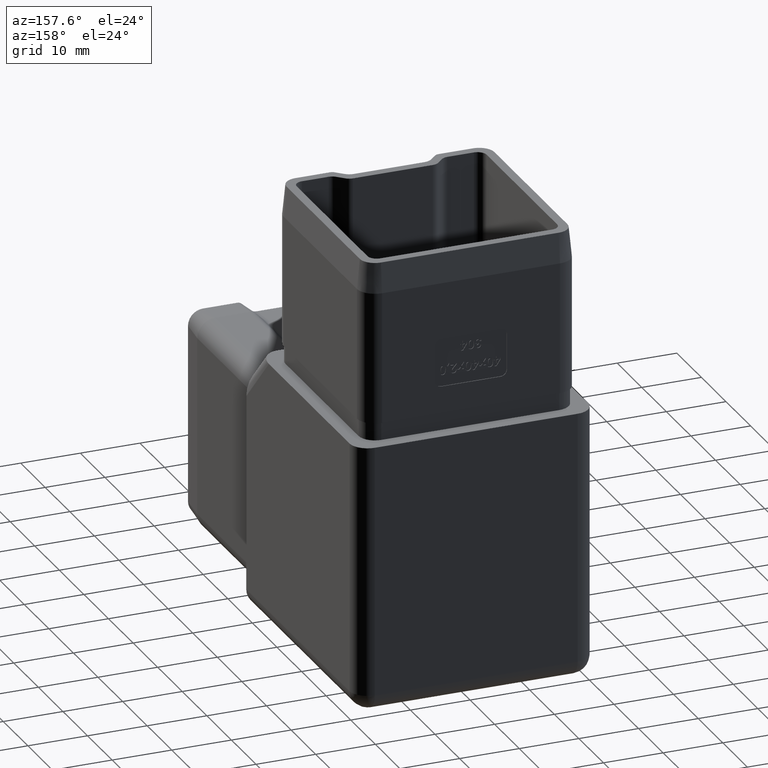
[diagram: clean part render]
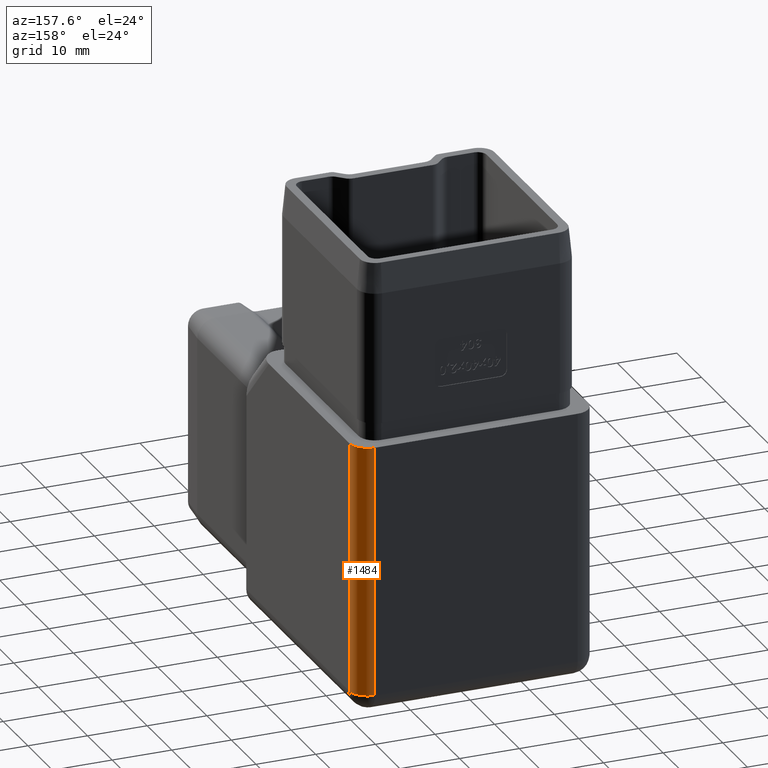
[diagram: same view with one face highlighted and labeled with its STEP entity id]
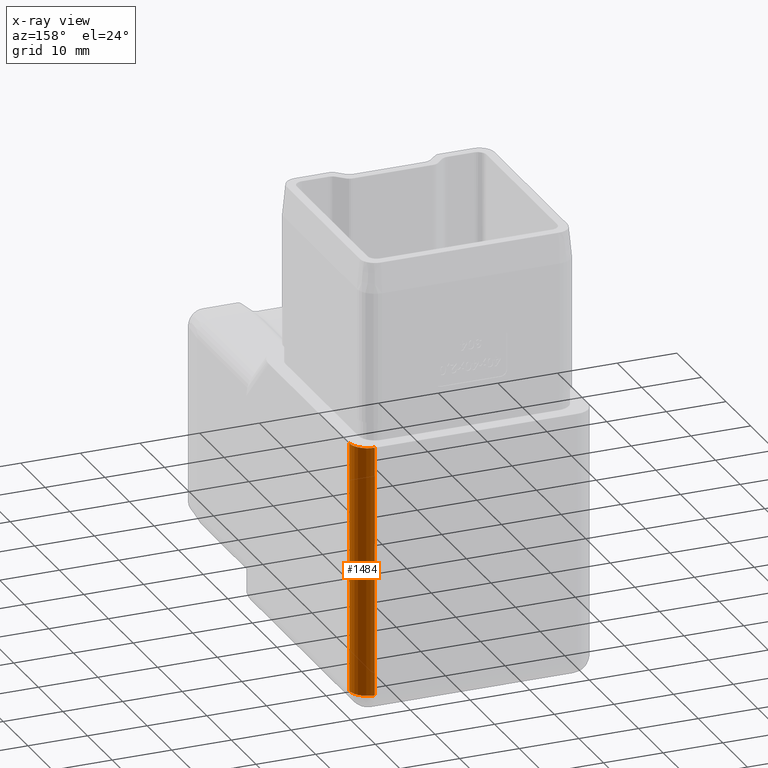
[diagram: x-ray of the same camera — body ghosted, the highlighted face saturated]
A machine part, auxiliary view. The second image highlights one B-rep face of the part: STEP entity #1484.
The next image is the same camera in x-ray: the body ghosted, the highlighted face saturated — about 0% of this face is hidden behind the body in this view.
In plain terms, the highlighted cylindrical surface (edge-blend (fillet) strip) has radius 3 mm, axis along (0, 0, -1).
Its self-contained STEP definition (entity closure, byte-faithful):
#23 = CARTESIAN_POINT ( 'NONE',  ( 16.99999999999999300, 22.50000000000000000, 22.50000000000000000 ) ) ;
#96 = DIRECTION ( 'NONE',  ( 0.0000000000000000000, 0.0000000000000000000, -1.000000000000000000 ) ) ;
#1248 = EDGE_CURVE ( 'NONE', #24596, #3199, #13594, .T. ) ;
#1484 = ADVANCED_FACE ( 'NONE', ( #25144 ), #11361, .T. ) ;
#1859 = AXIS2_PLACEMENT_3D ( 'NONE', #24469, #96, #18379 ) ;
#2310 = VECTOR ( 'NONE', #23024, 1000.000000000000000 ) ;
#3199 = VERTEX_POINT ( 'NONE', #23 ) ;
#3332 = EDGE_CURVE ( 'NONE', #9592, #24596, #11324, .T. ) ;
#3711 = EDGE_CURVE ( 'NONE', #21633, #9592, #20424, .T. ) ;
#4720 = CARTESIAN_POINT ( 'NONE',  ( 16.99999999999999300, 22.50000000000000000, 22.50000000000000000 ) ) ;
#5174 = EDGE_LOOP ( 'NONE', ( #18942, #14167, #19986, #10438 ) ) ;
#6125 = EDGE_CURVE ( 'NONE', #3199, #21633, #22415, .T. ) ;
#6904 = CARTESIAN_POINT ( 'NONE',  ( 16.99999999999999300, 22.50000000000000000, -19.49999999999999600 ) ) ;
#7910 = DIRECTION ( 'NONE',  ( -1.000000000000000000, 0.0000000000000000000, 0.0000000000000000000 ) ) ;
#8754 = DIRECTION ( 'NONE',  ( 0.0000000000000000000, 0.0000000000000000000, -1.000000000000000000 ) ) ;
#9022 = CARTESIAN_POINT ( 'NONE',  ( 19.99999999999999600, 19.50000000000000000, 22.50000000000000000 ) ) ;
#9448 = AXIS2_PLACEMENT_3D ( 'NONE', #20349, #22151, #7910 ) ;
#9537 = CARTESIAN_POINT ( 'NONE',  ( 19.99999999999999600, 19.50000000000000000, 22.50000000000000000 ) ) ;
#9592 = VERTEX_POINT ( 'NONE', #24510 ) ;
#10438 = ORIENTED_EDGE ( 'NONE', *, *, #6125, .F. ) ;
#11324 = LINE ( 'NONE', #9022, #2310 ) ;
#11361 = CYLINDRICAL_SURFACE ( 'NONE', #1859, 2.999999999999999100 ) ;
#13594 = CIRCLE ( 'NONE', #22514, 2.999999999999999100 ) ;
#14167 = ORIENTED_EDGE ( 'NONE', *, *, #3332, .F. ) ;
#18379 = DIRECTION ( 'NONE',  ( -1.000000000000000000, 0.0000000000000000000, 0.0000000000000000000 ) ) ;
#18942 = ORIENTED_EDGE ( 'NONE', *, *, #1248, .F. ) ;
#19470 = DIRECTION ( 'NONE',  ( 1.000000000000000000, 0.0000000000000000000, 0.0000000000000000000 ) ) ;
#19732 = CARTESIAN_POINT ( 'NONE',  ( 16.99999999999999300, 19.50000000000000000, 22.50000000000000000 ) ) ;
#19871 = VECTOR ( 'NONE', #8754, 1000.000000000000000 ) ;
#19986 = ORIENTED_EDGE ( 'NONE', *, *, #3711, .F. ) ;
#20349 = CARTESIAN_POINT ( 'NONE',  ( 16.99999999999999300, 19.50000000000000000, -19.49999999999999600 ) ) ;
#20424 = CIRCLE ( 'NONE', #9448, 2.999999999999999100 ) ;
#21633 = VERTEX_POINT ( 'NONE', #6904 ) ;
#22151 = DIRECTION ( 'NONE',  ( 0.0000000000000000000, 0.0000000000000000000, -1.000000000000000000 ) ) ;
#22415 = LINE ( 'NONE', #4720, #19871 ) ;
#22514 = AXIS2_PLACEMENT_3D ( 'NONE', #19732, #25747, #19470 ) ;
#23024 = DIRECTION ( 'NONE',  ( -0.0000000000000000000, -0.0000000000000000000, 1.000000000000000000 ) ) ;
#24469 = CARTESIAN_POINT ( 'NONE',  ( 16.99999999999999300, 19.50000000000000000, 22.50000000000000000 ) ) ;
#24510 = CARTESIAN_POINT ( 'NONE',  ( 19.99999999999999600, 19.50000000000000000, -19.49999999999999600 ) ) ;
#24596 = VERTEX_POINT ( 'NONE', #9537 ) ;
#25144 = FACE_OUTER_BOUND ( 'NONE', #5174, .T. ) ;
#25747 = DIRECTION ( 'NONE',  ( -0.0000000000000000000, 0.0000000000000000000, 1.000000000000000000 ) ) ;